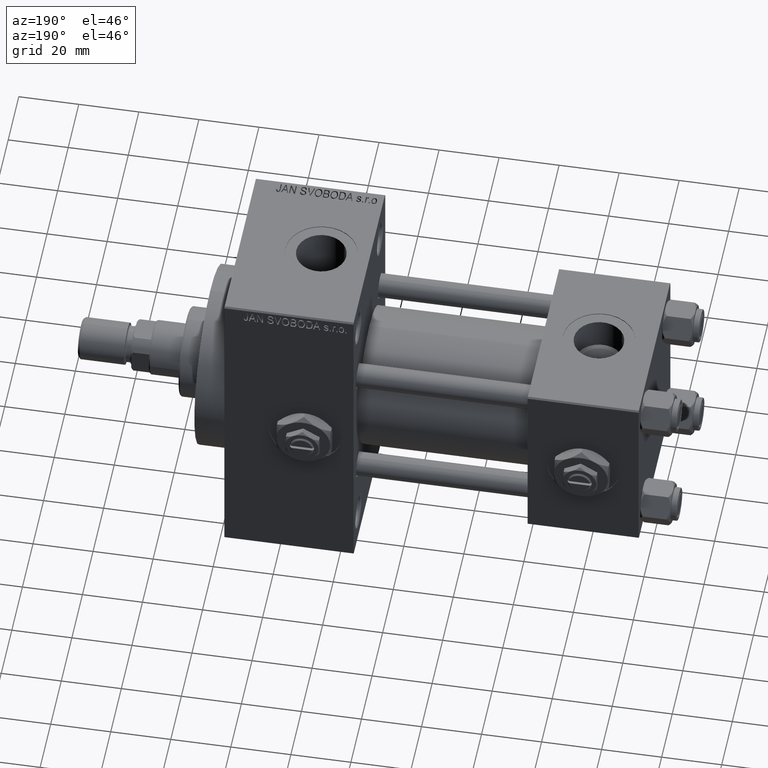
[diagram: clean part render]
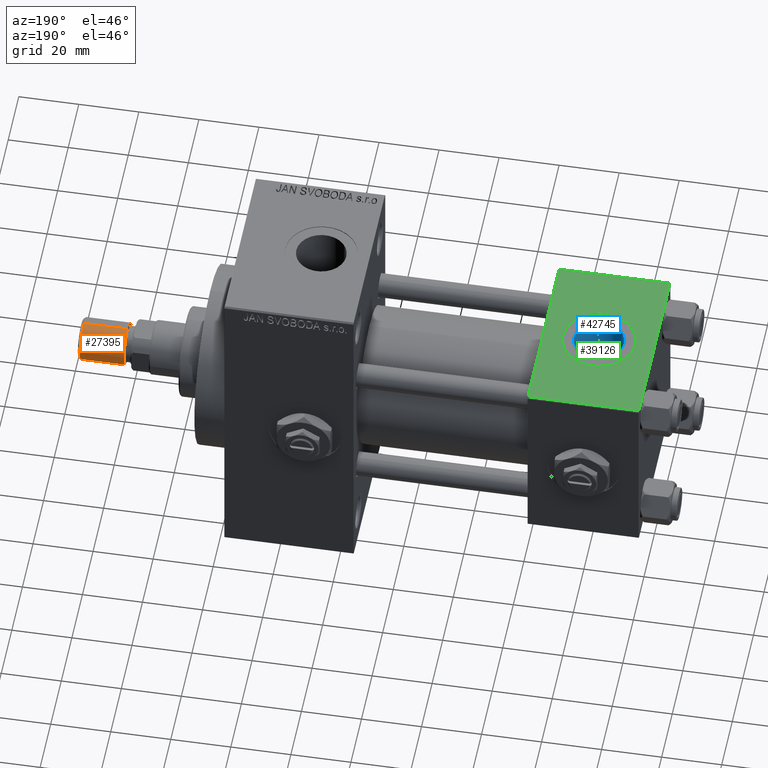
[diagram: same view with three faces highlighted in distinct colors, each labeled with its STEP entity id]
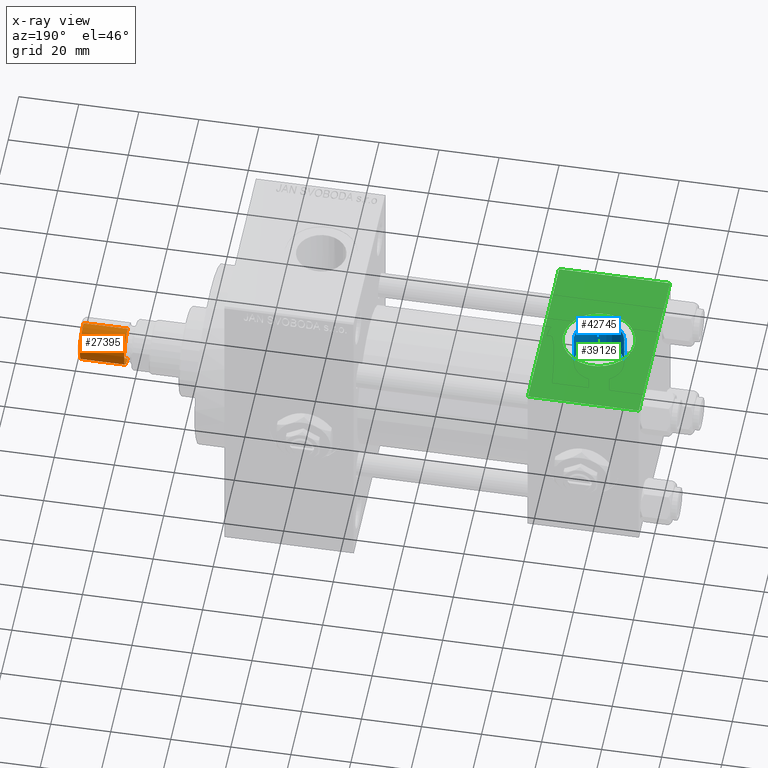
[diagram: x-ray of the same camera — body ghosted, the three highlighted faces saturated]
A machine part, auxiliary view with three faces highlighted in distinct colors.
The next image is the same camera in x-ray (body ghosted, the three faces saturated) — at least one of them is partly hidden behind the body in this view.
Their STEP definitions:

[orange] entity #27395 — the highlighted cylindrical surface (edge-blend (fillet) strip) has radius 7 mm, axis along (1, -0, -0).
#1430 = VERTEX_POINT ( 'NONE', #25834 ) ;
#1647 = DIRECTION ( 'NONE',  ( 1.000000000000000000, 0.000000000000000000, 0.000000000000000000 ) ) ;
#1979 = VERTEX_POINT ( 'NONE', #6852 ) ;
#3112 = LINE ( 'NONE', #49150, #27618 ) ;
#4095 = DIRECTION ( 'NONE',  ( -0.000000000000000000, -0.000000000000000000, -1.000000000000000000 ) ) ;
#4235 = AXIS2_PLACEMENT_3D ( 'NONE', #30809, #26285, #10928 ) ;
#5547 = CARTESIAN_POINT ( 'NONE',  ( 0.000000000000000000, 0.000000000000000000, 15.50000000000000000 ) ) ;
#6040 = FACE_OUTER_BOUND ( 'NONE', #20161, .T. ) ;
#6852 = CARTESIAN_POINT ( 'NONE',  ( -7.000000000000000000, 0.000000000000000000, 15.50000000000000000 ) ) ;
#9587 = DIRECTION ( 'NONE',  ( -1.000000000000000000, 0.000000000000000000, 0.000000000000000000 ) ) ;
#10928 = DIRECTION ( 'NONE',  ( 1.000000000000000000, 0.000000000000000000, 0.000000000000000000 ) ) ;
#10935 = DIRECTION ( 'NONE',  ( -0.000000000000000000, -0.000000000000000000, -1.000000000000000000 ) ) ;
#11560 = VERTEX_POINT ( 'NONE', #25887 ) ;
#15381 = EDGE_CURVE ( 'NONE', #1430, #11560, #36957, .T. ) ;
#16574 = ORIENTED_EDGE ( 'NONE', *, *, #25365, .T. ) ;
#17468 = VERTEX_POINT ( 'NONE', #43277 ) ;
#20161 = EDGE_LOOP ( 'NONE', ( #20820, #16574, #25901, #25397 ) ) ;
#20796 = DIRECTION ( 'NONE',  ( -0.000000000000000000, -0.000000000000000000, 1.000000000000000000 ) ) ;
#20820 = ORIENTED_EDGE ( 'NONE', *, *, #24360, .F. ) ;
#20904 = CYLINDRICAL_SURFACE ( 'NONE', #46114, 7.000000000000000000 ) ;
#21894 = CIRCLE ( 'NONE', #4235, 7.000000000000000000 ) ;
#24360 = EDGE_CURVE ( 'NONE', #17468, #1979, #21894, .T. ) ;
#25365 = EDGE_CURVE ( 'NONE', #17468, #1430, #3112, .T. ) ;
#25397 = ORIENTED_EDGE ( 'NONE', *, *, #41267, .F. ) ;
#25834 = CARTESIAN_POINT ( 'NONE',  ( 7.000000000000000000, 8.572527594031473190E-16, 0.8000000000000020428 ) ) ;
#25887 = CARTESIAN_POINT ( 'NONE',  ( -7.000000000000000000, 0.000000000000000000, 0.8000000000000020428 ) ) ;
#25901 = ORIENTED_EDGE ( 'NONE', *, *, #15381, .T. ) ;
#26285 = DIRECTION ( 'NONE',  ( 0.000000000000000000, 0.000000000000000000, 1.000000000000000000 ) ) ;
#27395 = ADVANCED_FACE ( 'NONE', ( #6040 ), #20904, .T. ) ;
#27618 = VECTOR ( 'NONE', #10935, 1000.000000000000000 ) ;
#28149 = AXIS2_PLACEMENT_3D ( 'NONE', #39919, #20796, #1647 ) ;
#28244 = CARTESIAN_POINT ( 'NONE',  ( -7.000000000000000000, 0.000000000000000000, 15.50000000000000000 ) ) ;
#30809 = CARTESIAN_POINT ( 'NONE',  ( 0.000000000000000000, 0.000000000000000000, 15.50000000000000000 ) ) ;
#32240 = DIRECTION ( 'NONE',  ( -0.000000000000000000, -0.000000000000000000, -1.000000000000000000 ) ) ;
#36957 = CIRCLE ( 'NONE', #28149, 7.000000000000000000 ) ;
#38873 = VECTOR ( 'NONE', #4095, 1000.000000000000000 ) ;
#39919 = CARTESIAN_POINT ( 'NONE',  ( 0.000000000000000000, 0.000000000000000000, 0.8000000000000020428 ) ) ;
#41267 = EDGE_CURVE ( 'NONE', #1979, #11560, #43336, .T. ) ;
#43277 = CARTESIAN_POINT ( 'NONE',  ( 7.000000000000000000, 8.572527594031473190E-16, 15.50000000000000000 ) ) ;
#43336 = LINE ( 'NONE', #28244, #38873 ) ;
#46114 = AXIS2_PLACEMENT_3D ( 'NONE', #5547, #32240, #9587 ) ;
#49150 = CARTESIAN_POINT ( 'NONE',  ( 7.000000000000000000, 8.572527594031473190E-16, 15.50000000000000000 ) ) ;

[blue] entity #42745 — the highlighted cylindrical surface (edge-blend (fillet) strip) has radius 8.33 mm, axis along (0, 0, 1).
#56 = DIRECTION ( 'NONE',  ( 1.000000000000000000, 0.000000000000000000, 0.000000000000000000 ) ) ;
#2737 = VERTEX_POINT ( 'NONE', #46860 ) ;
#4635 = EDGE_CURVE ( 'NONE', #13209, #19736, #47031, .T. ) ;
#4662 = EDGE_CURVE ( 'NONE', #19736, #2737, #46186, .T. ) ;
#5246 = VECTOR ( 'NONE', #11483, 1000.000000000000000 ) ;
#6276 = CARTESIAN_POINT ( 'NONE',  ( 10.16999999999999638, -2.449316168263869821E-15, 19.19999999999999574 ) ) ;
#7191 = DIRECTION ( 'NONE',  ( 1.000000000000000000, 0.000000000000000000, 0.000000000000000000 ) ) ;
#7673 = AXIS2_PLACEMENT_3D ( 'NONE', #24413, #34883, #7191 ) ;
#9999 = EDGE_CURVE ( 'NONE', #13209, #36113, #10152, .T. ) ;
#10152 = LINE ( 'NONE', #40096, #43224 ) ;
#11483 = DIRECTION ( 'NONE',  ( -0.000000000000000000, -0.000000000000000000, 1.000000000000000000 ) ) ;
#13209 = VERTEX_POINT ( 'NONE', #6276 ) ;
#13909 = DIRECTION ( 'NONE',  ( -0.000000000000000000, -0.000000000000000000, 1.000000000000000000 ) ) ;
#14205 = ORIENTED_EDGE ( 'NONE', *, *, #9999, .T. ) ;
#17195 = CIRCLE ( 'NONE', #22839, 8.330000000000000071 ) ;
#18068 = DIRECTION ( 'NONE',  ( -0.000000000000000000, -0.000000000000000000, 1.000000000000000000 ) ) ;
#18816 = DIRECTION ( 'NONE',  ( 1.000000000000000000, 0.000000000000000000, 0.000000000000000000 ) ) ;
#19533 = EDGE_LOOP ( 'NONE', ( #47596, #14205, #48637, #30747 ) ) ;
#19736 = VERTEX_POINT ( 'NONE', #41988 ) ;
#19749 = CARTESIAN_POINT ( 'NONE',  ( 10.16999999999999638, -2.449316168263869821E-15, 29.79999999999999716 ) ) ;
#22839 = AXIS2_PLACEMENT_3D ( 'NONE', #34559, #31052, #56 ) ;
#24413 = CARTESIAN_POINT ( 'NONE',  ( 18.50000000000000000, -3.469446951953614978E-15, 19.19999999999999574 ) ) ;
#27101 = CARTESIAN_POINT ( 'NONE',  ( 26.82999999999999829, -3.469446951953614978E-15, 19.19999999999999574 ) ) ;
#30747 = ORIENTED_EDGE ( 'NONE', *, *, #4662, .F. ) ;
#31052 = DIRECTION ( 'NONE',  ( 0.000000000000000000, 0.000000000000000000, 1.000000000000000000 ) ) ;
#34559 = CARTESIAN_POINT ( 'NONE',  ( 18.50000000000000000, -3.469446951953614978E-15, 29.79999999999999716 ) ) ;
#34883 = DIRECTION ( 'NONE',  ( 0.000000000000000000, 0.000000000000000000, 1.000000000000000000 ) ) ;
#34928 = AXIS2_PLACEMENT_3D ( 'NONE', #37694, #18068, #18816 ) ;
#36113 = VERTEX_POINT ( 'NONE', #19749 ) ;
#37694 = CARTESIAN_POINT ( 'NONE',  ( 18.50000000000000000, -3.469446951953614978E-15, 19.19999999999999574 ) ) ;
#38199 = CYLINDRICAL_SURFACE ( 'NONE', #34928, 8.330000000000000071 ) ;
#40096 = CARTESIAN_POINT ( 'NONE',  ( 10.16999999999999638, -2.449316168263869821E-15, 19.19999999999999574 ) ) ;
#41988 = CARTESIAN_POINT ( 'NONE',  ( 26.82999999999999829, -3.469446951953614978E-15, 19.19999999999999574 ) ) ;
#42039 = EDGE_CURVE ( 'NONE', #36113, #2737, #17195, .T. ) ;
#42745 = ADVANCED_FACE ( 'NONE', ( #48007 ), #38199, .F. ) ;
#43224 = VECTOR ( 'NONE', #13909, 1000.000000000000000 ) ;
#46186 = LINE ( 'NONE', #27101, #5246 ) ;
#46860 = CARTESIAN_POINT ( 'NONE',  ( 26.82999999999999829, -3.469446951953614978E-15, 29.79999999999999716 ) ) ;
#47031 = CIRCLE ( 'NONE', #7673, 8.330000000000000071 ) ;
#47596 = ORIENTED_EDGE ( 'NONE', *, *, #4635, .F. ) ;
#48007 = FACE_OUTER_BOUND ( 'NONE', #19533, .T. ) ;
#48637 = ORIENTED_EDGE ( 'NONE', *, *, #42039, .T. ) ;

[green] entity #39126 — the highlighted planar face has unit normal (0, 0, -1).
#1133 = CIRCLE ( 'NONE', #8418, 12.00000000000000000 ) ;
#2750 = DIRECTION ( 'NONE',  ( 0.000000000000000000, -1.000000000000000000, -1.156482317317871725E-16 ) ) ;
#6597 = PLANE ( 'NONE',  #23545 ) ;
#6844 = CARTESIAN_POINT ( 'NONE',  ( 37.00000000000000000, 29.99999999999999289, 30.00000000000000000 ) ) ;
#6898 = EDGE_LOOP ( 'NONE', ( #42108, #33326 ) ) ;
#7096 = FACE_OUTER_BOUND ( 'NONE', #26020, .T. ) ;
#7608 = FACE_BOUND ( 'NONE', #6898, .T. ) ;
#7938 = CARTESIAN_POINT ( 'NONE',  ( 0.000000000000000000, -29.49999999999998579, 29.99999999999999289 ) ) ;
#8418 = AXIS2_PLACEMENT_3D ( 'NONE', #34943, #10787, #26142 ) ;
#10632 = DIRECTION ( 'NONE',  ( 0.000000000000000000, 1.156482317317871725E-16, -1.000000000000000000 ) ) ;
#10787 = DIRECTION ( 'NONE',  ( 0.000000000000000000, 0.000000000000000000, 1.000000000000000000 ) ) ;
#15337 = VECTOR ( 'NONE', #41398, 1000.000000000000000 ) ;
#16132 = VERTEX_POINT ( 'NONE', #31359 ) ;
#16358 = CARTESIAN_POINT ( 'NONE',  ( 18.50000000000000000, -3.469446951953614978E-15, 29.99999999999999645 ) ) ;
#16873 = EDGE_CURVE ( 'NONE', #18957, #27666, #18259, .T. ) ;
#18259 = LINE ( 'NONE', #33618, #15337 ) ;
#18450 = ORIENTED_EDGE ( 'NONE', *, *, #18911, .T. ) ;
#18911 = EDGE_CURVE ( 'NONE', #45247, #27666, #46001, .T. ) ;
#18937 = LINE ( 'NONE', #34301, #48487 ) ;
#18957 = VERTEX_POINT ( 'NONE', #41980 ) ;
#21884 = CARTESIAN_POINT ( 'NONE',  ( 0.000000000000000000, 29.99999999999999289, 30.00000000000000000 ) ) ;
#22958 = DIRECTION ( 'NONE',  ( 0.000000000000000000, 1.000000000000000000, 1.156482317317871725E-16 ) ) ;
#23545 = AXIS2_PLACEMENT_3D ( 'NONE', #6844, #10632, #22958 ) ;
#26020 = EDGE_LOOP ( 'NONE', ( #46063, #18450, #26028, #42489 ) ) ;
#26028 = ORIENTED_EDGE ( 'NONE', *, *, #16873, .F. ) ;
#26142 = DIRECTION ( 'NONE',  ( 1.000000000000000000, 0.000000000000000000, 0.000000000000000000 ) ) ;
#26234 = CARTESIAN_POINT ( 'NONE',  ( 6.499999999999997335, -1.999870792976790833E-15, 29.99999999999999645 ) ) ;
#27666 = VERTEX_POINT ( 'NONE', #36940 ) ;
#27901 = VECTOR ( 'NONE', #2750, 1000.000000000000000 ) ;
#28242 = VERTEX_POINT ( 'NONE', #43389 ) ;
#28419 = EDGE_CURVE ( 'NONE', #28242, #47374, #42125, .T. ) ;
#31359 = CARTESIAN_POINT ( 'NONE',  ( 0.000000000000000000, 29.49999999999999289, 30.00000000000000000 ) ) ;
#31851 = EDGE_CURVE ( 'NONE', #47374, #28242, #1133, .T. ) ;
#33326 = ORIENTED_EDGE ( 'NONE', *, *, #31851, .F. ) ;
#33618 = CARTESIAN_POINT ( 'NONE',  ( 37.00000000000000000, 29.99999999999999289, 30.00000000000000000 ) ) ;
#34301 = CARTESIAN_POINT ( 'NONE',  ( 0.000000000000000000, 29.49999999999999289, 30.00000000000000000 ) ) ;
#34552 = DIRECTION ( 'NONE',  ( -1.000000000000000000, 0.000000000000000000, 0.000000000000000000 ) ) ;
#34943 = CARTESIAN_POINT ( 'NONE',  ( 18.50000000000000000, -3.469446951953614978E-15, 29.99999999999999645 ) ) ;
#35702 = AXIS2_PLACEMENT_3D ( 'NONE', #16358, #39493, #42781 ) ;
#36707 = EDGE_CURVE ( 'NONE', #16132, #45247, #49031, .T. ) ;
#36940 = CARTESIAN_POINT ( 'NONE',  ( 37.00000000000000000, -29.49999999999998579, 29.99999999999999289 ) ) ;
#37209 = DIRECTION ( 'NONE',  ( 1.000000000000000000, 0.000000000000000000, 0.000000000000000000 ) ) ;
#38213 = CARTESIAN_POINT ( 'NONE',  ( 37.00000000000000000, -29.50000000000000000, 29.99999999999999289 ) ) ;
#39126 = ADVANCED_FACE ( 'NONE', ( #7608, #7096 ), #6597, .F. ) ;
#39493 = DIRECTION ( 'NONE',  ( 0.000000000000000000, 0.000000000000000000, 1.000000000000000000 ) ) ;
#41233 = EDGE_CURVE ( 'NONE', #18957, #16132, #18937, .T. ) ;
#41398 = DIRECTION ( 'NONE',  ( 0.000000000000000000, -1.000000000000000000, -1.156482317317871725E-16 ) ) ;
#41980 = CARTESIAN_POINT ( 'NONE',  ( 37.00000000000000000, 29.49999999999999289, 30.00000000000000000 ) ) ;
#42108 = ORIENTED_EDGE ( 'NONE', *, *, #28419, .F. ) ;
#42125 = CIRCLE ( 'NONE', #35702, 12.00000000000000000 ) ;
#42489 = ORIENTED_EDGE ( 'NONE', *, *, #41233, .T. ) ;
#42781 = DIRECTION ( 'NONE',  ( 1.000000000000000000, 0.000000000000000000, 0.000000000000000000 ) ) ;
#43389 = CARTESIAN_POINT ( 'NONE',  ( 30.50000000000000000, -3.469446951953614978E-15, 29.99999999999999645 ) ) ;
#43421 = VECTOR ( 'NONE', #37209, 1000.000000000000000 ) ;
#45247 = VERTEX_POINT ( 'NONE', #7938 ) ;
#46001 = LINE ( 'NONE', #38213, #43421 ) ;
#46063 = ORIENTED_EDGE ( 'NONE', *, *, #36707, .T. ) ;
#47374 = VERTEX_POINT ( 'NONE', #26234 ) ;
#48487 = VECTOR ( 'NONE', #34552, 1000.000000000000000 ) ;
#49031 = LINE ( 'NONE', #21884, #27901 ) ;